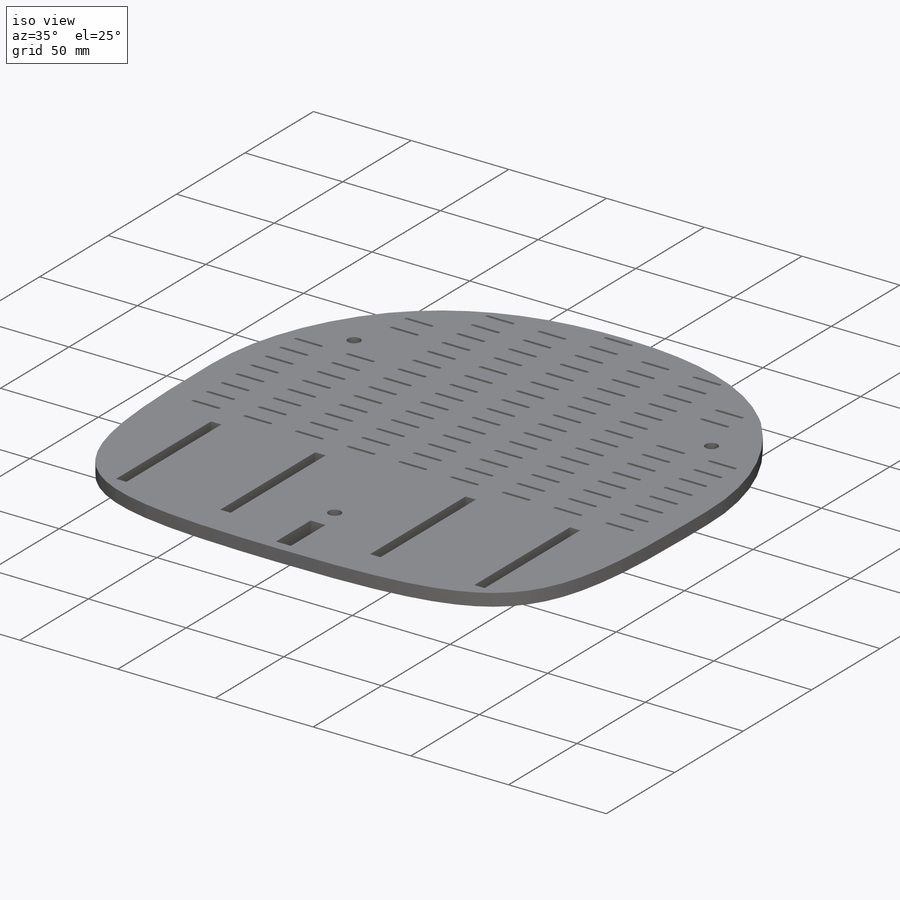
[diagram: iso view]
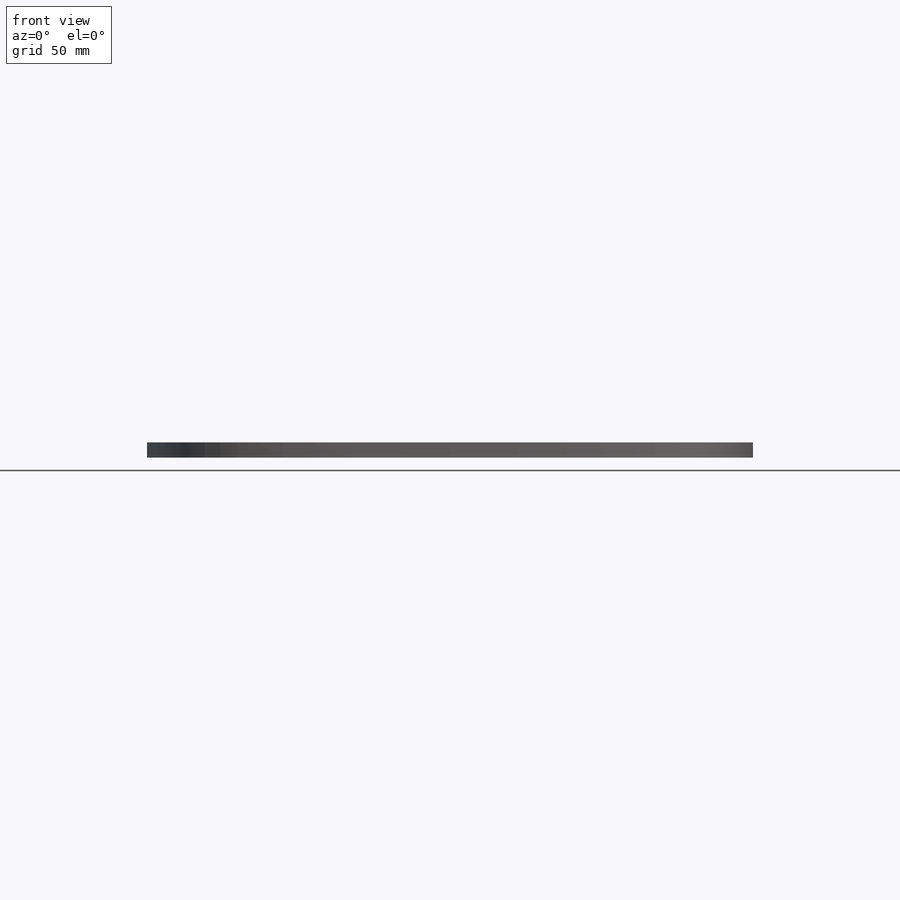
[diagram: front view]
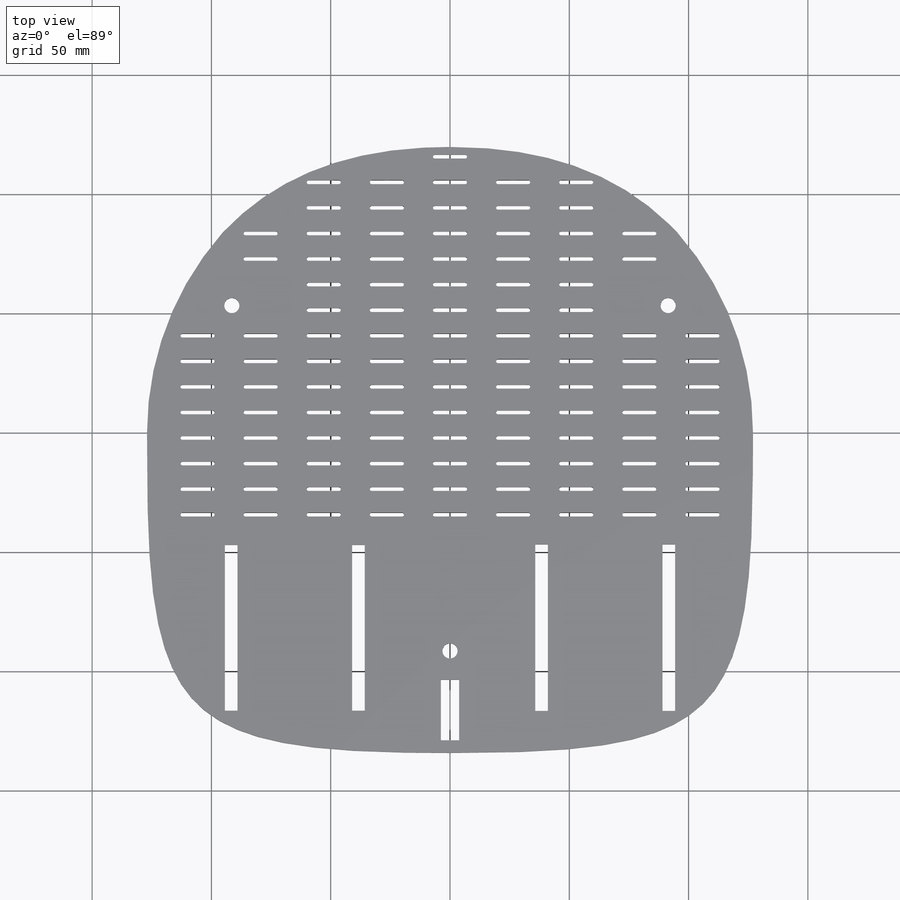
[diagram: top view]
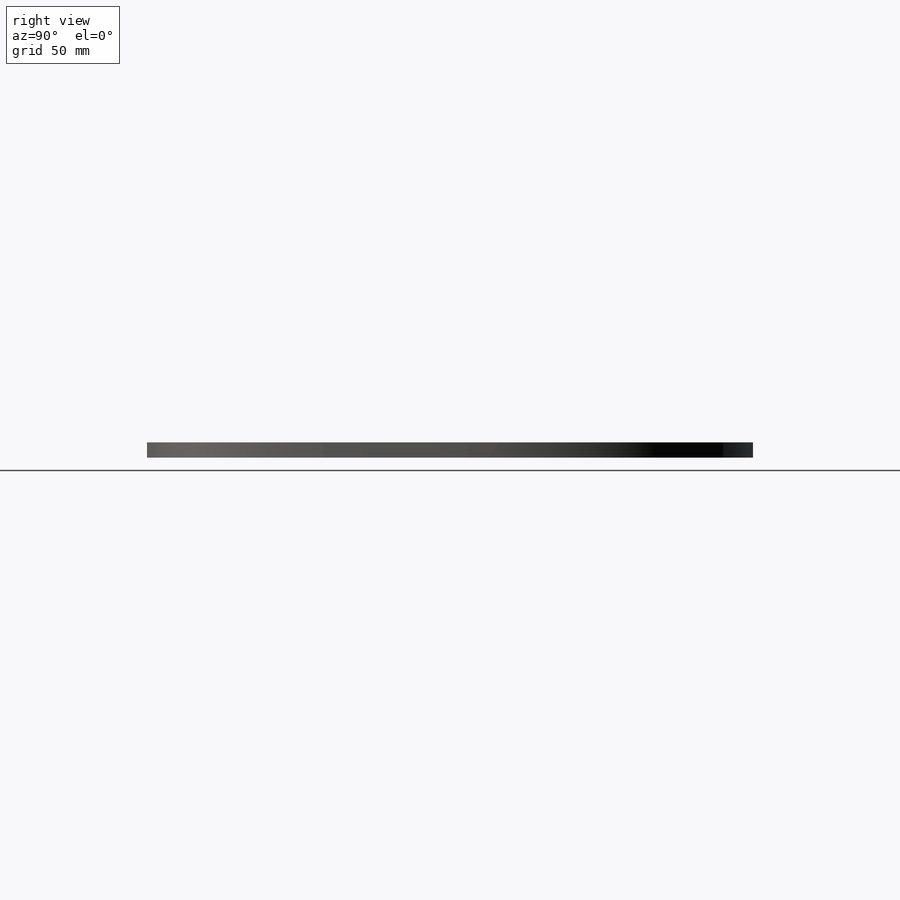
[diagram: right view]
SOLIDWORKS PART (.sldprt)
format: sldprt  version: not decoded by parser v0  size: 703,488 bytes
history: native  units: mm
features: sketch x8, cut_extrude x4, material x1, extrude x1, pattern_linear x1 (+11 scaffold rows collapsed)
feature tree (26):
  scaffold x11  (default folders/planes/origin — collapsed)
  material  "Material <not specified>"
  sketch  "Layer1Limits"  dims[D1=254.0mm D2=254.0mm]
  sketch  "Sketch1"  dims[D1=254.0mm]
  extrude  "Base"  Depth=6.35mm
  sketch  "Sketch16"
  cut_extrude  "EmptySpaceTrim"  [1 undecoded]
  sketch  "ShaftLayout"  dims[D1=58.0mm D2=76.0mm D3=7.62mm D4=2.794mm D5=31.75mm D6=9.906mm D7=12.7mm D8=19.05mm D9=1.5875mm D10=12.7mm D11=15.875mm D12=19.05mm D13=1.5875mm D14=15.875mm D15=12.7mm D16=6.35mm D17=20.066mm D18=20.0mm D19=11.0mm]
  sketch  "MotorLayout"  dims[c1.D1=6.35mm c1.D2=76.0mm c1.D3=57.0mm c1.D4=20.0mm c1.D5=15.24mm c2.D1=20.0mm c2.D4=2.794mm c2.D6=31.75mm c2.D7=20.6375mm c2.D8=12.7mm c2.D9=31.75mm c3.D1=20.0mm c3.D9=7.62mm c3.D10=16.51mm]
  sketch  "Sketch8"  dims[c1.D1=6.35mm c1.D2=6.35mm c2.D1=5.334mm c2.D2=6.223mm c2.D4=5.334mm c2.D5=18.796mm c3.D4=7.62mm c3.D5=25.4mm c3.D6=6.223mm c3.D7=0.0mm c3.D3=2.0]
  cut_extrude  "MotorCut"  [1 undecoded]
  sketch  "Sketch11"  dims[c1.D1=6.35mm c1.D2=6.35mm c2.D1=6.35mm c2.D2=6.35mm c2.D3=6.35mm c2.D6=6.35mm c3.D2=6.35mm c3.D4=6.35mm c4.D2=11.684mm c4.D4=9.525mm c4.D5=38.1mm c4.D6=91.44mm c5.D2=91.44mm c5.D4=53.34mm]
  cut_extrude  "ScrewCut"  [1 undecoded]
  sketch  "Sketch17"  dims[c1.D10=~1.382336mm c1.D1=12.7mm c1.D2=12.7mm c1.D3=17.78mm c1.D4=17.78mm c1.D5=1.5875mm c1.D6=12.7mm c1.D9=10.7188mm c2.D10=1.5875mm c2.D11=10.7188mm c2.D1=12.7mm c2.D2=1.5875mm c2.D3=11.43mm]
  cut_extrude  "Cut-Extrude1"  [1 undecoded]
  pattern_linear  "LPattern1"  Count1=9 Count2=15 Spacing1=26.4541mm Spacing2=10.7188mm
decode coverage: 9 of 14 modeling features carry decoded parameters
note: ~ marks probable driven/reference dimensions
note: 4 parameter values undecoded
summary: no parameter record found for 4 features
note: suppression state not decoded; provenance and decode notes live in map.json
